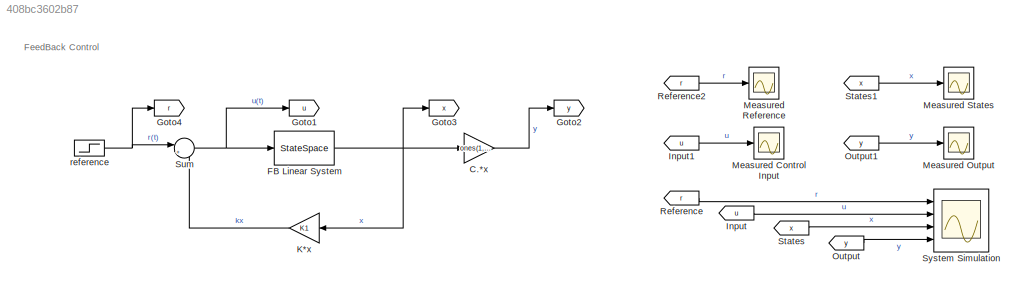
MODEL slx_408bc3602b87
KIND model
CONFIG AbsTol = auto
CONFIG EnableMultiTasking = off
CONFIG FixedStep = auto
CONFIG MaxStep = auto
CONFIG MinStep = auto
CONFIG RelTol = 1e-3
CONFIG SampleTimeConstraint = Unconstrained
CONFIG SolverName = VariableStepAuto
CONFIG StartTime = 0.0
CONFIG StopTime = 10
BLOCK [Gain] C.*x
  Gain = ones(1,3)
  Multiplication = Matrix(K*u)
BLOCK [StateSpace] FB Linear System
  A = A
  B = B
  C = C
  D = D
  InitialCondition = x0
  Ports = [1, 1]
BLOCK [Goto] Goto1
  GotoTag = u
BLOCK [Goto] Goto2
  GotoTag = y
BLOCK [Goto] Goto3
  GotoTag = x
BLOCK [Goto] Goto4
  GotoTag = r
BLOCK [From] Input
  GotoTag = u
BLOCK [From] Input1
  GotoTag = u
BLOCK [Gain] K*x
  Gain = K1
  Multiplication = Matrix(K*u)
BLOCK [Scope] Measured Control Input
  Floating = off
  NumInputPorts = 1
  Ports = [1]
  ScopeSpecificationString = Simulink.scopes.TimeScopeBlockCfg('CurrentConfiguration', extmgr.ConfigurationSet(extmgr.Configuration('Core','General UI',true),extmgr.Configuration('Core','Source UI',true),extmgr.Configuration('Sources','WiredSimulink',true,'DataLoggingVariableName','ScopeData2'),extmgr.Configuration('Visuals','Time Domain',true,'SerializedDisplays',{struct('MinYLimReal','-0.125','MaxYLimReal','1.125','YLabelRe...<+1348ch>
BLOCK [Scope] Measured Output
  Floating = off
  NumInputPorts = 1
  Ports = [1]
  ScopeSpecificationString = Simulink.scopes.TimeScopeBlockCfg('CurrentConfiguration', extmgr.ConfigurationSet(extmgr.Configuration('Core','General UI',true),extmgr.Configuration('Core','Source UI',true),extmgr.Configuration('Sources','WiredSimulink',true),extmgr.Configuration('Visuals','Time Domain',true,'SerializedDisplays',{struct('MinYLimReal','-196.04992','MaxYLimReal','143.84575','YLabelReal','','MinYLimMag',' 0.00000',...<+1421ch>
BLOCK [Scope] Measured Reference
  Floating = off
  NumInputPorts = 1
  Ports = [1]
  ScopeSpecificationString = Simulink.scopes.TimeScopeBlockCfg('CurrentConfiguration', extmgr.ConfigurationSet(extmgr.Configuration('Core','General UI',true),extmgr.Configuration('Core','Source UI',true),extmgr.Configuration('Sources','WiredSimulink',true,'DataLoggingVariableName','ScopeData3'),extmgr.Configuration('Visuals','Time Domain',true,'SerializedDisplays',{struct('MinYLimReal','-0.125','MaxYLimReal','1.125','YLabelRe...<+1383ch>
BLOCK [Scope] Measured States
  Floating = off
  NumInputPorts = 1
  Ports = [1]
  ScopeSpecificationString = Simulink.scopes.TimeScopeBlockCfg('CurrentConfiguration', extmgr.ConfigurationSet(extmgr.Configuration('Core','General UI',true),extmgr.Configuration('Core','Source UI',true),extmgr.Configuration('Sources','WiredSimulink',true,'DataLoggingVariableName','ScopeData1'),extmgr.Configuration('Visuals','Time Domain',true,'SerializedDisplays',{struct('MinYLimReal','-18.84981','MaxYLimReal','48.06286','YL...<+1380ch>
BLOCK [From] Output
  GotoTag = y
BLOCK [From] Output1
  GotoTag = y
BLOCK [From] Reference
  GotoTag = r
BLOCK [From] Reference2
  GotoTag = r
BLOCK [From] States
  GotoTag = x
BLOCK [From] States1
  GotoTag = x
BLOCK [Sum] Sum
  Inputs = |+-
  Ports = [2, 1]
BLOCK [Scope] System Simulation
  Floating = off
  NumInputPorts = 4
  Ports = [4]
  ScopeSpecificationString = Simulink.scopes.TimeScopeBlockCfg('CurrentConfiguration', extmgr.ConfigurationSet(extmgr.Configuration('Core','General UI',true,'FigureColor',[0 0 0]),extmgr.Configuration('Core','Source UI',true),extmgr.Configuration('Sources','WiredSimulink',true,'DataLoggingVariableName','ScopeData1'),extmgr.Configuration('Visuals','Time Domain',true,'SerializedDisplays',{struct('MinYLimReal','-0.125','MaxYLimR...<+3947ch>
BLOCK [Step] reference
  SampleTime = 0
ANNOTATION (root): FeedBack Control
LINE C.*x:1 -> Goto2:1
NET FB Linear System:1 -> C.*x:1, Goto3:1, K*x:1
LINE Input1:1 -> Measured Control Input:1
LINE Input:1 -> System Simulation:2
LINE K*x:1 -> Sum:2
LINE Output1:1 -> Measured Output:1
LINE Output:1 -> System Simulation:4
LINE Reference2:1 -> Measured Reference:1
LINE Reference:1 -> System Simulation:1
LINE States1:1 -> Measured States:1
LINE States:1 -> System Simulation:3
NET Sum:1 -> FB Linear System:1, Goto1:1
NET reference:1 -> Goto4:1, Sum:1
note: NET lines group one-source signal fan-out (src -> all destinations, sorted); 1:1 wires keep LINE
